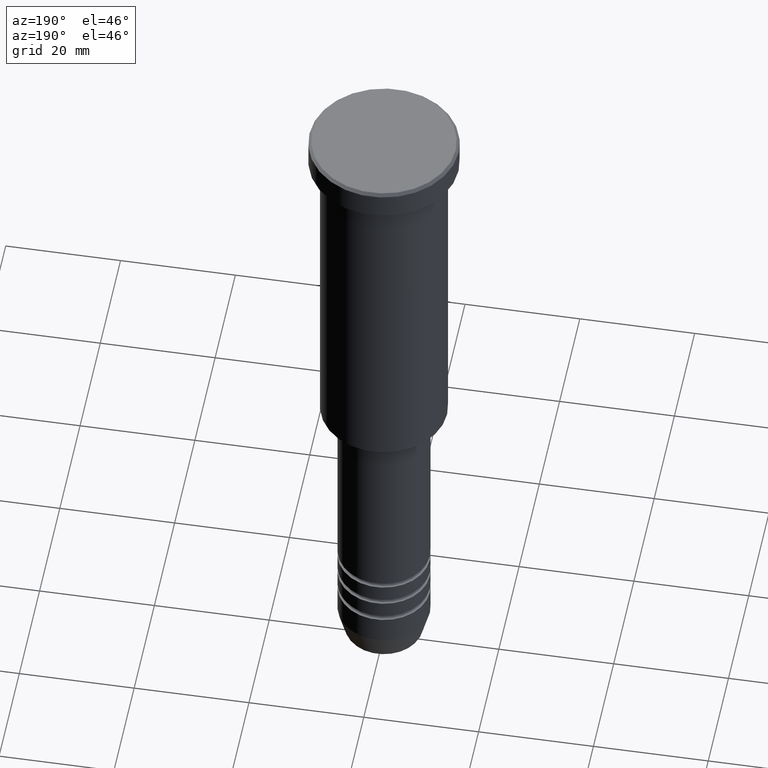
[diagram: clean part render]
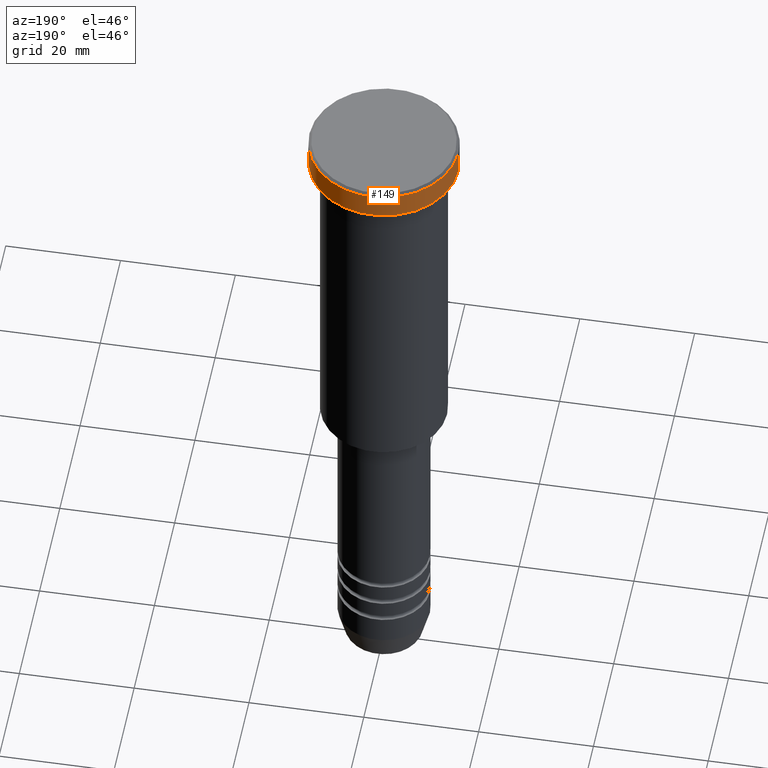
[diagram: same view with one face highlighted and labeled with its STEP entity id]
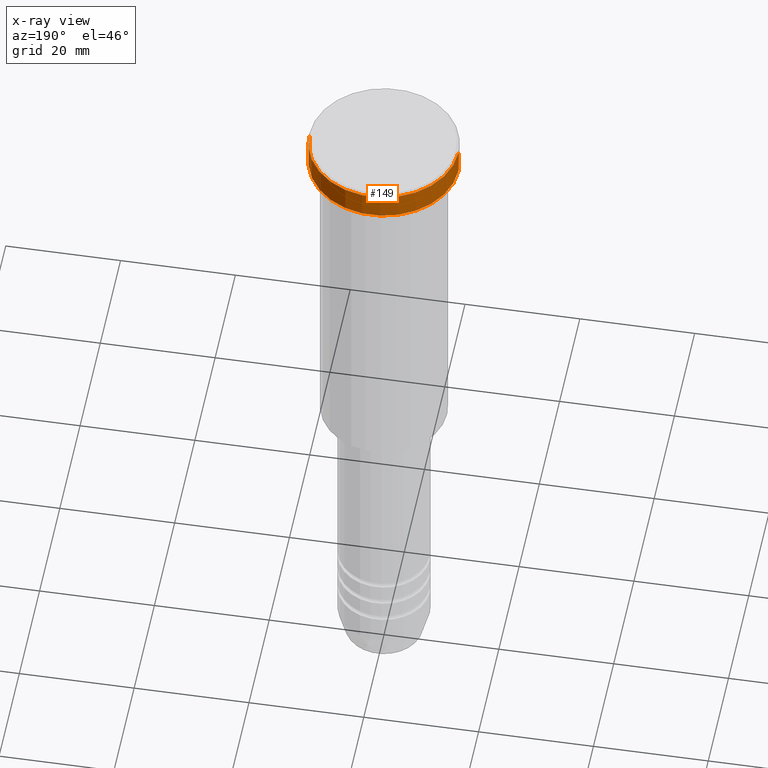
[diagram: x-ray of the same camera — body ghosted, the highlighted face saturated]
A machine part, auxiliary view. The second image highlights one B-rep face of the part: STEP entity #149.
The next image is the same camera in x-ray: the body ghosted, the highlighted face saturated — about 0% of this face is hidden behind the body in this view.
In plain terms, the highlighted cylindrical surface (partial cylindrical patch) has radius 13 mm, axis along (-0, -0, 1).
Its self-contained STEP definition (entity closure, byte-faithful):
#8 = AXIS2_PLACEMENT_3D ( 'NONE', #390, #678, #31 ) ;
#31 = DIRECTION ( 'NONE',  ( 1.000000000000000000, 0.000000000000000000, 0.000000000000000000 ) ) ;
#34 = VERTEX_POINT ( 'NONE', #478 ) ;
#59 = AXIS2_PLACEMENT_3D ( 'NONE', #469, #382, #95 ) ;
#75 = CARTESIAN_POINT ( 'NONE',  ( 0.000000000000000000, 0.000000000000000000, -5.000000000000000000 ) ) ;
#89 = CYLINDRICAL_SURFACE ( 'NONE', #59, 13.00000000000000000 ) ;
#95 = DIRECTION ( 'NONE',  ( 1.000000000000000000, 0.000000000000000000, 0.000000000000000000 ) ) ;
#144 = CIRCLE ( 'NONE', #998, 13.00000000000000000 ) ;
#149 = ADVANCED_FACE ( 'NONE', ( #1111 ), #89, .T. ) ;
#169 = CARTESIAN_POINT ( 'NONE',  ( -13.00000000000000000, 1.592040838891559095E-15, 0.000000000000000000 ) ) ;
#231 = CIRCLE ( 'NONE', #8, 13.00000000000000000 ) ;
#253 = DIRECTION ( 'NONE',  ( 1.000000000000000000, 0.000000000000000000, 0.000000000000000000 ) ) ;
#260 = DIRECTION ( 'NONE',  ( -0.000000000000000000, -0.000000000000000000, 1.000000000000000000 ) ) ;
#267 = DIRECTION ( 'NONE',  ( -0.000000000000000000, -0.000000000000000000, 1.000000000000000000 ) ) ;
#312 = EDGE_CURVE ( 'NONE', #910, #906, #870, .T. ) ;
#326 = VERTEX_POINT ( 'NONE', #844 ) ;
#382 = DIRECTION ( 'NONE',  ( -0.000000000000000000, -0.000000000000000000, 1.000000000000000000 ) ) ;
#390 = CARTESIAN_POINT ( 'NONE',  ( 0.000000000000000000, 0.000000000000000000, -0.5000000000000073275 ) ) ;
#435 = ORIENTED_EDGE ( 'NONE', *, *, #1099, .T. ) ;
#447 = CARTESIAN_POINT ( 'NONE',  ( 13.00000000000000000, 0.000000000000000000, -5.000000000000000000 ) ) ;
#469 = CARTESIAN_POINT ( 'NONE',  ( 0.000000000000000000, 0.000000000000000000, 0.000000000000000000 ) ) ;
#478 = CARTESIAN_POINT ( 'NONE',  ( -13.00000000000000000, 1.592040838891559095E-15, -0.5000000000000073275 ) ) ;
#497 = EDGE_LOOP ( 'NONE', ( #877, #623, #435, #545 ) ) ;
#545 = ORIENTED_EDGE ( 'NONE', *, *, #312, .F. ) ;
#547 = VECTOR ( 'NONE', #797, 1000.000000000000000 ) ;
#605 = CARTESIAN_POINT ( 'NONE',  ( 13.00000000000000000, 0.000000000000000000, 0.000000000000000000 ) ) ;
#623 = ORIENTED_EDGE ( 'NONE', *, *, #1018, .T. ) ;
#678 = DIRECTION ( 'NONE',  ( 0.000000000000000000, 0.000000000000000000, -1.000000000000000000 ) ) ;
#793 = CARTESIAN_POINT ( 'NONE',  ( 13.00000000000000000, 0.000000000000000000, -0.5000000000000073275 ) ) ;
#797 = DIRECTION ( 'NONE',  ( -0.000000000000000000, -0.000000000000000000, 1.000000000000000000 ) ) ;
#844 = CARTESIAN_POINT ( 'NONE',  ( -13.00000000000000000, 1.592040838891559095E-15, -5.000000000000000000 ) ) ;
#870 = LINE ( 'NONE', #605, #547 ) ;
#877 = ORIENTED_EDGE ( 'NONE', *, *, #1015, .T. ) ;
#906 = VERTEX_POINT ( 'NONE', #793 ) ;
#910 = VERTEX_POINT ( 'NONE', #447 ) ;
#998 = AXIS2_PLACEMENT_3D ( 'NONE', #75, #260, #253 ) ;
#1015 = EDGE_CURVE ( 'NONE', #910, #326, #144, .T. ) ;
#1018 = EDGE_CURVE ( 'NONE', #326, #34, #1086, .T. ) ;
#1086 = LINE ( 'NONE', #169, #1127 ) ;
#1099 = EDGE_CURVE ( 'NONE', #34, #906, #231, .T. ) ;
#1111 = FACE_OUTER_BOUND ( 'NONE', #497, .T. ) ;
#1127 = VECTOR ( 'NONE', #267, 1000.000000000000000 ) ;